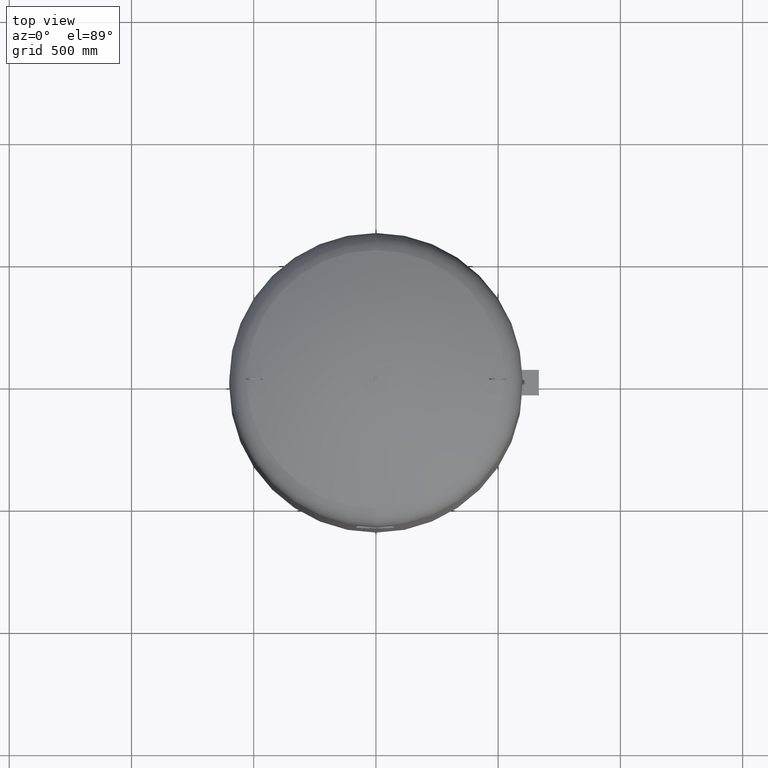
[diagram: clean part render]
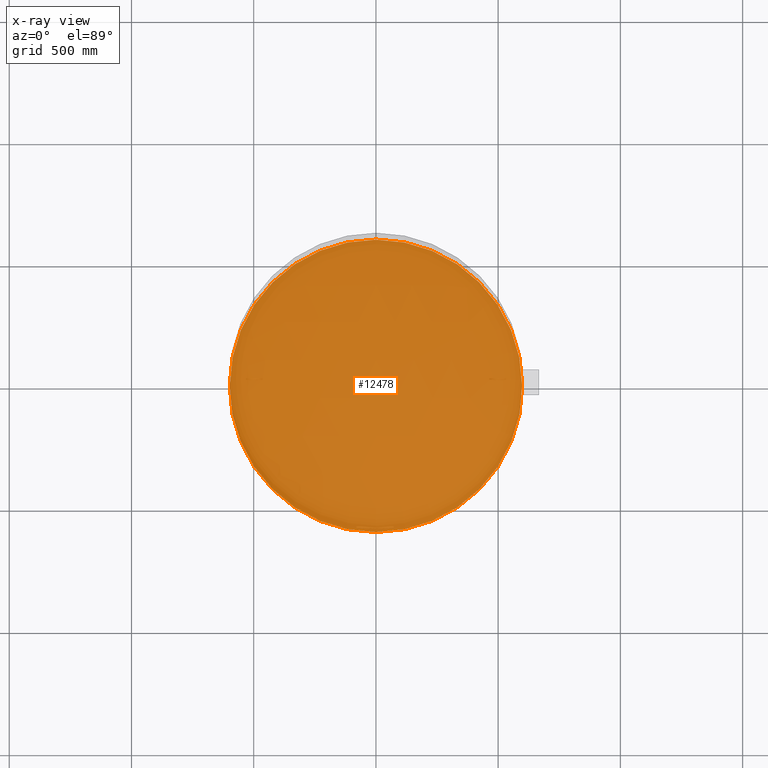
[diagram: x-ray — body ghosted, one internal face saturated and labeled with its STEP entity id]
A machine part, top view, then the same camera in x-ray: the body is ghosted and one INTERNAL B-rep face — a face not visible from any outside direction — is saturated and labeled: STEP entity #12478.
In plain terms, the highlighted planar face has unit normal (0, 0, -1).
Its self-contained STEP definition (entity closure, byte-faithful):
#12436=CARTESIAN_POINT('',(597.999999999999890,0.0,693.999999999999770));
#12437=VERTEX_POINT('',#12436);
#12445=CARTESIAN_POINT('',(-597.999999999999890,-7.323146E-014,693.999999999999770));
#12446=VERTEX_POINT('',#12445);
#12453=CARTESIAN_POINT('',(-1.668796E-014,0.0,693.999999999999770));
#12454=DIRECTION('',(0.0,0.0,1.0));
#12455=DIRECTION('',(1.0,0.0,0.0));
#12456=AXIS2_PLACEMENT_3D('',#12453,#12454,#12455);
#12457=CIRCLE('',#12456,597.999999999999890);
#12458=EDGE_CURVE('',#12446,#12437,#12457,.T.);
#12463=CARTESIAN_POINT('',(298.999999999999890,0.0,693.999999999999890));
#12464=DIRECTION('',(0.0,0.0,-1.0));
#12465=DIRECTION('',(-1.0,0.0,0.0));
#12466=AXIS2_PLACEMENT_3D('',#12463,#12464,#12465);
#12467=PLANE('',#12466);
#12468=CARTESIAN_POINT('',(-1.668796E-014,0.0,693.999999999999770));
#12469=DIRECTION('',(0.0,0.0,1.0));
#12470=DIRECTION('',(1.0,0.0,0.0));
#12471=AXIS2_PLACEMENT_3D('',#12468,#12469,#12470);
#12472=CIRCLE('',#12471,597.999999999999890);
#12473=EDGE_CURVE('',#12437,#12446,#12472,.T.);
#12474=ORIENTED_EDGE('',*,*,#12473,.F.);
#12475=ORIENTED_EDGE('',*,*,#12458,.F.);
#12476=EDGE_LOOP('',(#12474,#12475));
#12477=FACE_OUTER_BOUND('',#12476,.T.);
#12478=ADVANCED_FACE('',(#12477),#12467,.T.);